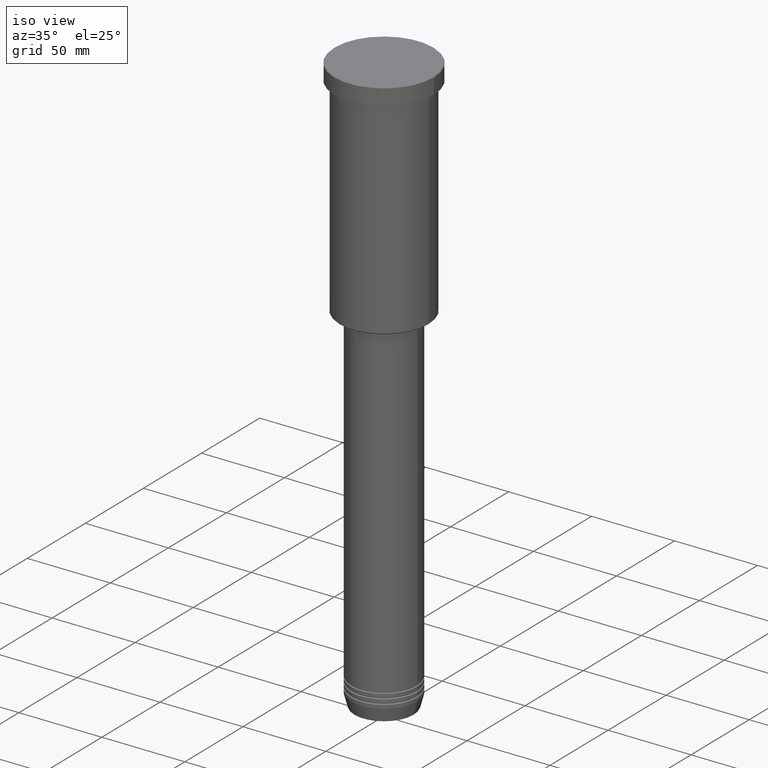
[diagram: clean part render]
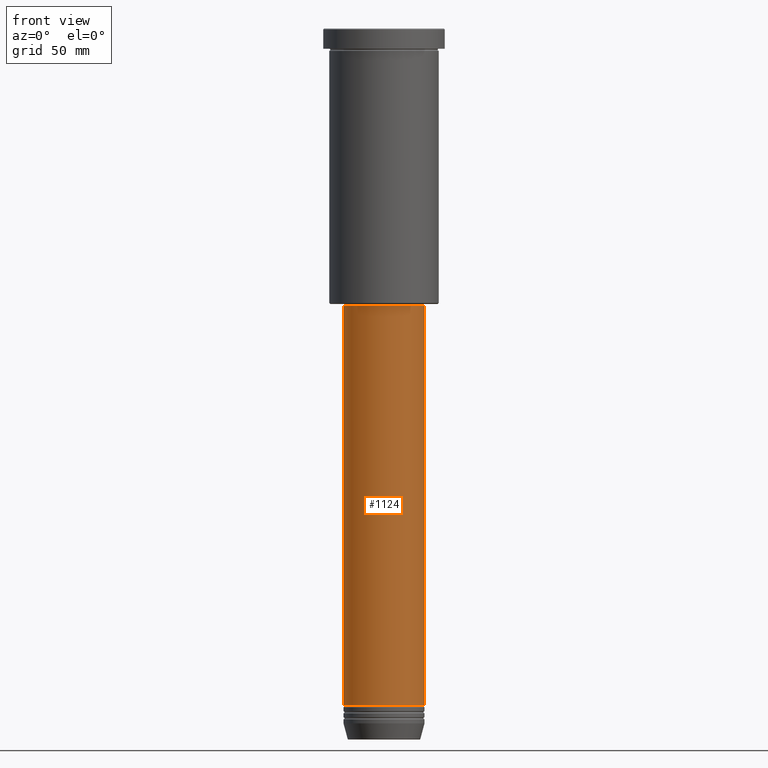
[diagram: tour spotlight — one face highlighted and labeled with its STEP entity id]
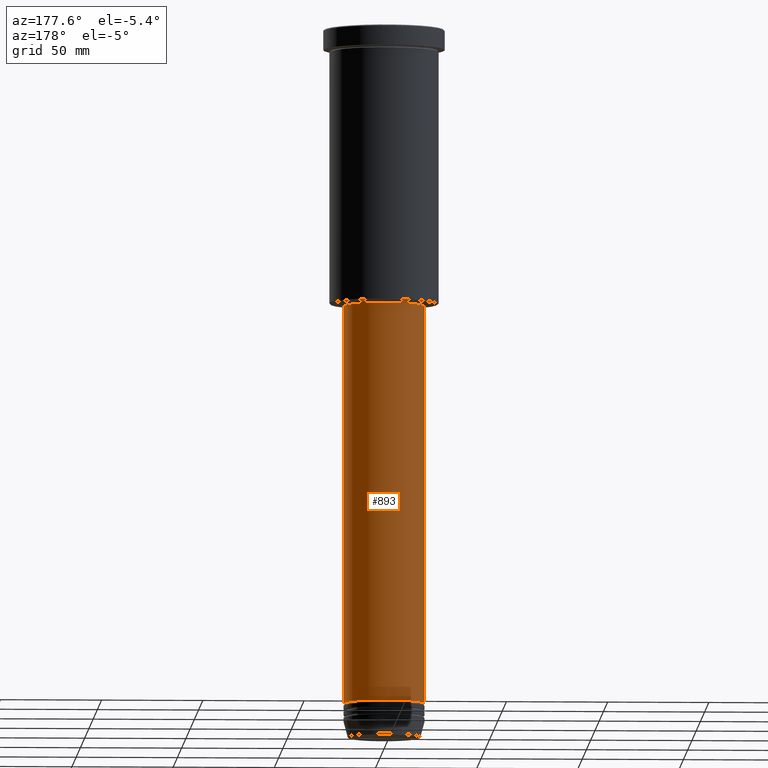
[diagram: tour spotlight — one face highlighted and labeled with its STEP entity id]
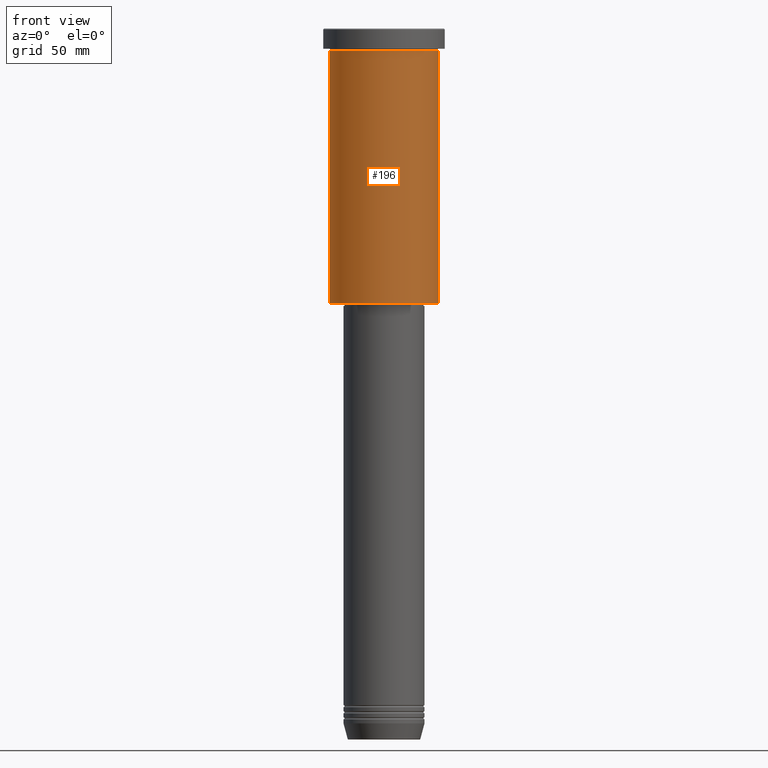
[diagram: tour spotlight — one face highlighted and labeled with its STEP entity id]
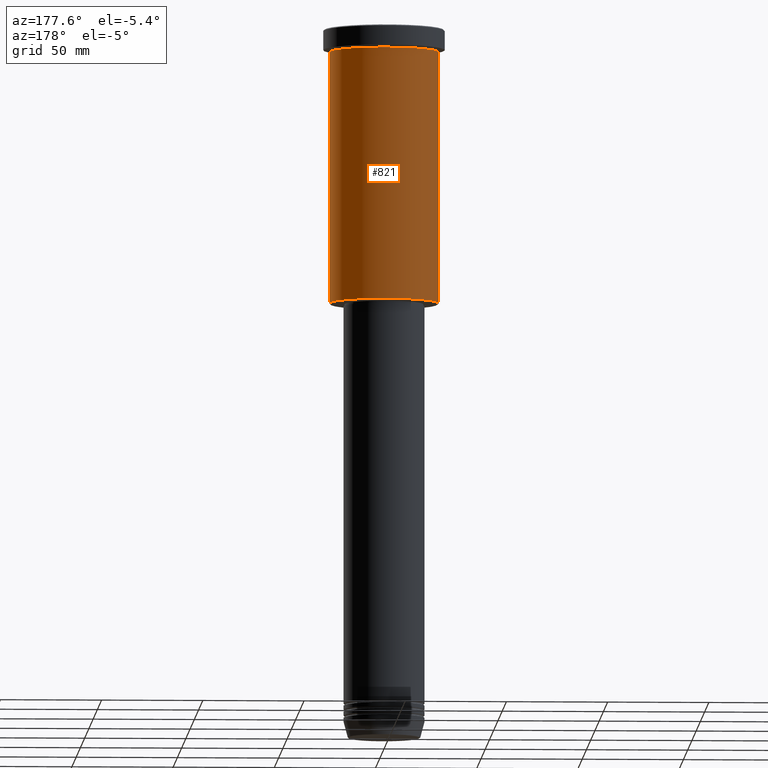
[diagram: tour spotlight — one face highlighted and labeled with its STEP entity id]
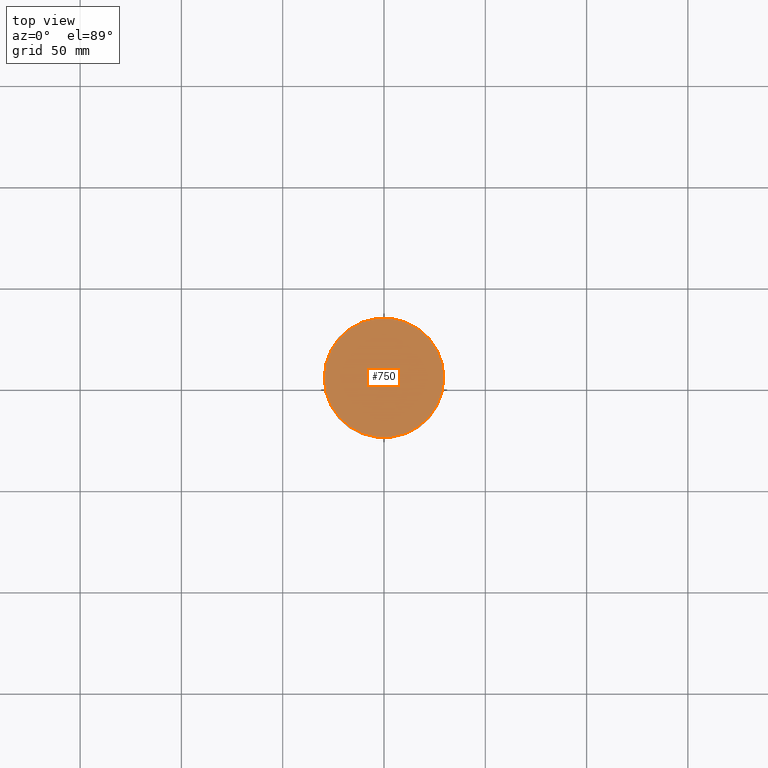
[diagram: tour spotlight — one face highlighted and labeled with its STEP entity id]
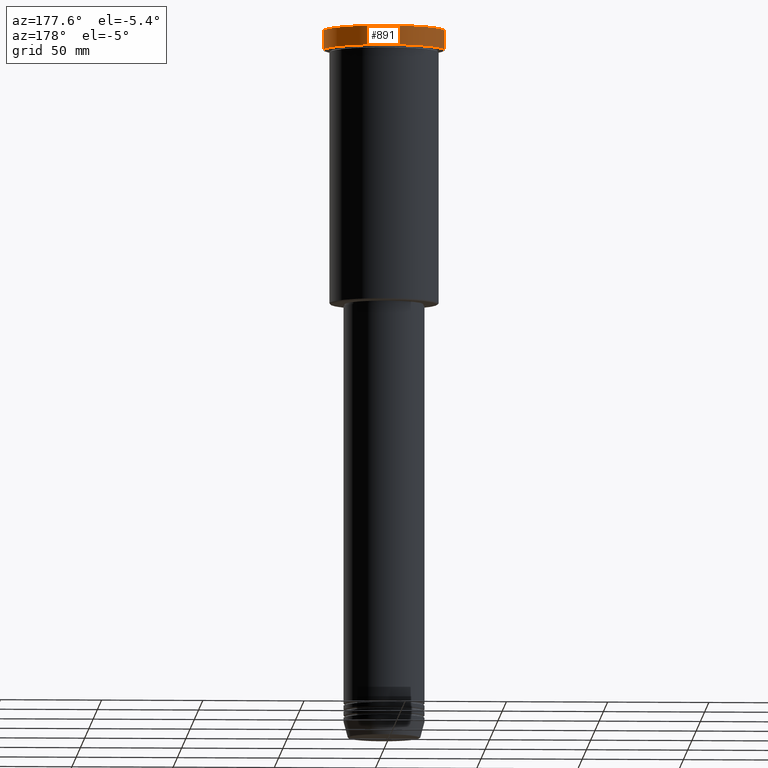
[diagram: tour spotlight — one face highlighted and labeled with its STEP entity id]
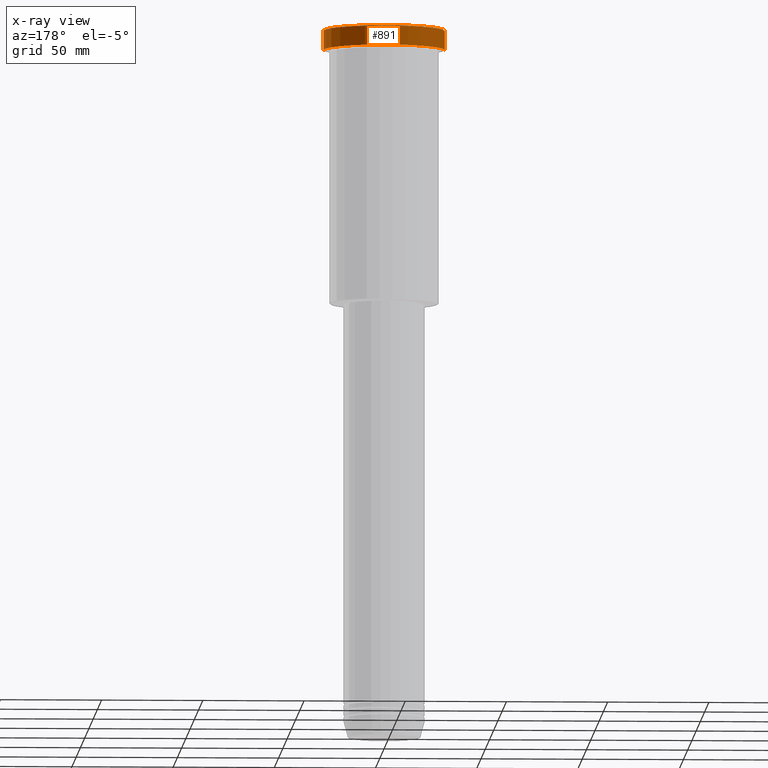
[diagram: x-ray of the same camera — body ghosted, this tour face saturated]
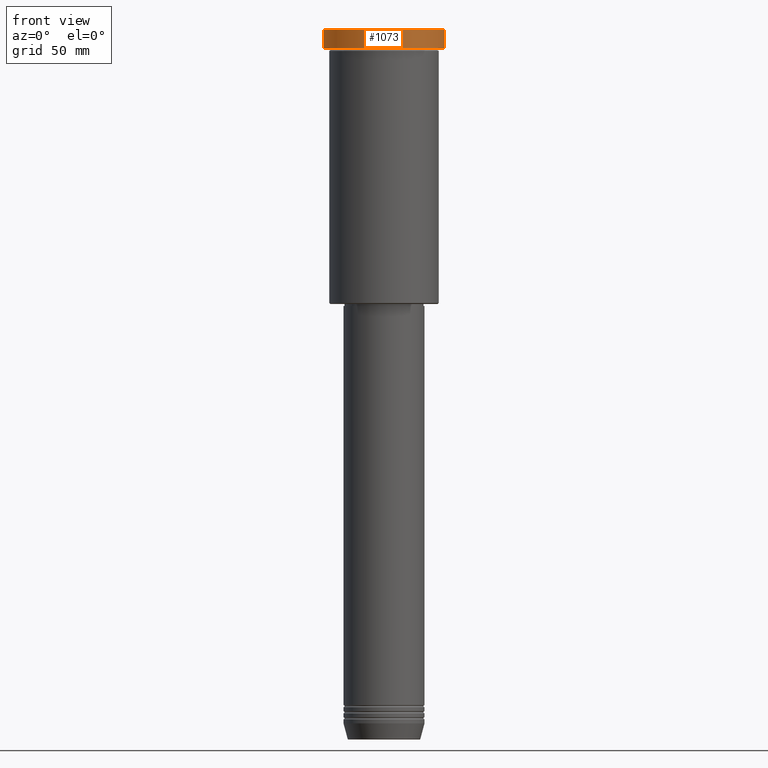
[diagram: tour spotlight — one face highlighted and labeled with its STEP entity id]
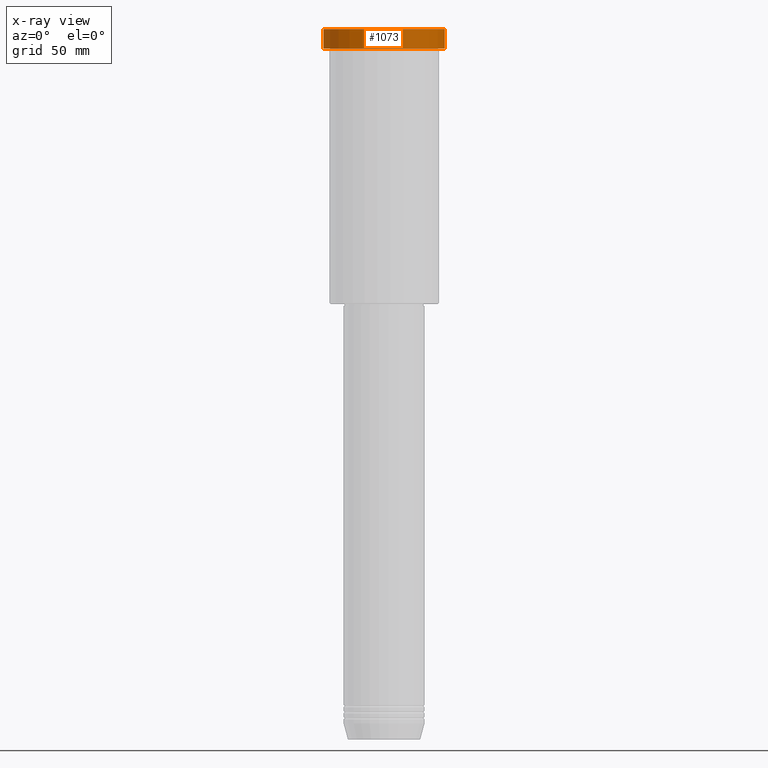
[diagram: x-ray of the same camera — body ghosted, this tour face saturated]
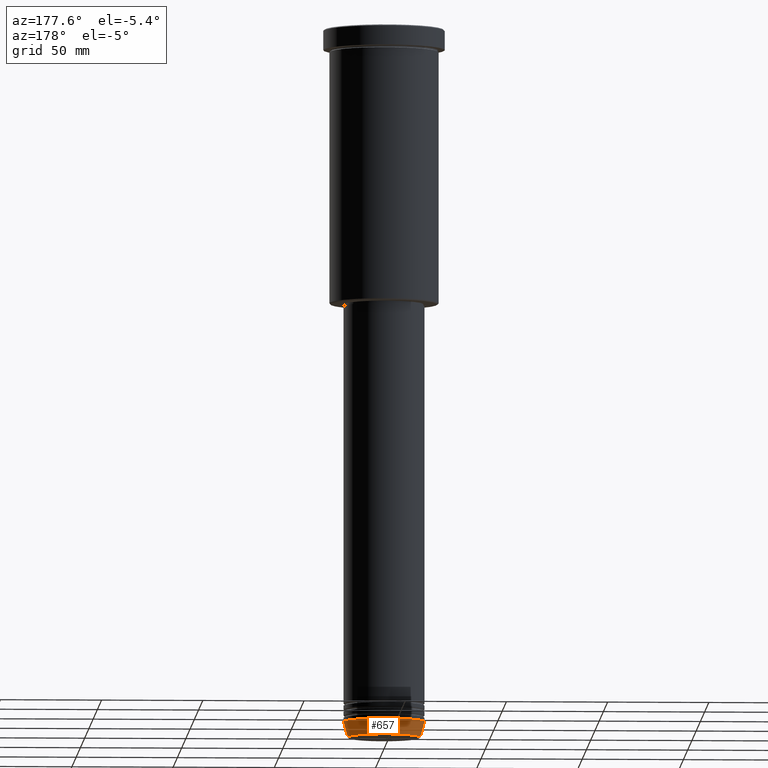
[diagram: tour spotlight — one face highlighted and labeled with its STEP entity id]
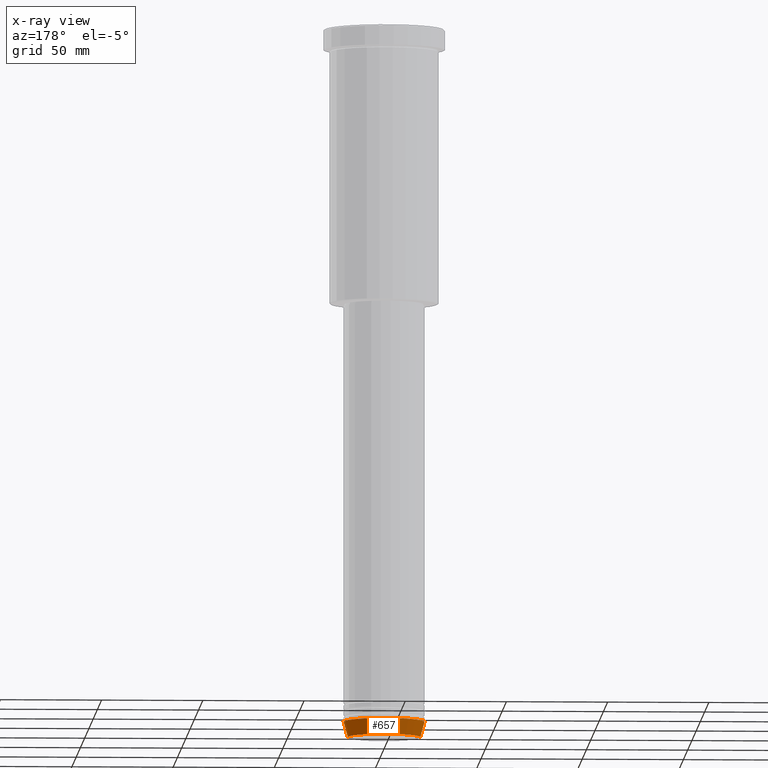
[diagram: x-ray of the same camera — body ghosted, this tour face saturated]
A machine part: a face-by-face anatomy tour. The part has 43 B-rep faces; the first image is the clean iso view, then the 8 largest visible faces are spotlighted one at a time (largest first), each with its STEP entity span.

Face 1 — front view, entity #1124. In plain terms, the highlighted cylindrical surface (partial cylindrical patch) has radius 20 mm, axis along (-0, -0, 1).
Definition (entity closure, byte-faithful):
#180 = ORIENTED_EDGE ( 'NONE', *, *, #408, .T. ) ;
#183 = DIRECTION ( 'NONE',  ( -0.000000000000000000, -0.000000000000000000, 1.000000000000000000 ) ) ;
#227 = CARTESIAN_POINT ( 'NONE',  ( 0.000000000000000000, 0.000000000000000000, 0.000000000000000000 ) ) ;
#302 = CYLINDRICAL_SURFACE ( 'NONE', #1092, 20.00000000000000000 ) ;
#304 = ORIENTED_EDGE ( 'NONE', *, *, #904, .F. ) ;
#307 = DIRECTION ( 'NONE',  ( 1.000000000000000000, 0.000000000000000000, 0.000000000000000000 ) ) ;
#340 = ORIENTED_EDGE ( 'NONE', *, *, #473, .F. ) ;
#351 = DIRECTION ( 'NONE',  ( -0.000000000000000000, -0.000000000000000000, 1.000000000000000000 ) ) ;
#353 = CIRCLE ( 'NONE', #721, 20.00000000000000000 ) ;
#355 = EDGE_LOOP ( 'NONE', ( #304, #827, #180, #340 ) ) ;
#397 = CARTESIAN_POINT ( 'NONE',  ( 0.000000000000000000, 0.000000000000000000, -333.9999999999999432 ) ) ;
#408 = EDGE_CURVE ( 'NONE', #749, #947, #887, .T. ) ;
#409 = VERTEX_POINT ( 'NONE', #517 ) ;
#411 = CIRCLE ( 'NONE', #1069, 20.00000000000000000 ) ;
#418 = CARTESIAN_POINT ( 'NONE',  ( 20.00000000000000000, 0.000000000000000000, -333.9999999999999432 ) ) ;
#433 = DIRECTION ( 'NONE',  ( -0.000000000000000000, -0.000000000000000000, 1.000000000000000000 ) ) ;
#441 = CARTESIAN_POINT ( 'NONE',  ( 0.000000000000000000, 0.000000000000000000, -136.9999999999998579 ) ) ;
#473 = EDGE_CURVE ( 'NONE', #475, #947, #353, .T. ) ;
#475 = VERTEX_POINT ( 'NONE', #712 ) ;
#517 = CARTESIAN_POINT ( 'NONE',  ( -20.00000000000000000, 2.449293598294706513E-15, -333.9999999999999432 ) ) ;
#522 = CARTESIAN_POINT ( 'NONE',  ( 20.00000000000000000, 0.000000000000000000, 0.000000000000000000 ) ) ;
#588 = EDGE_CURVE ( 'NONE', #409, #749, #411, .T. ) ;
#607 = CARTESIAN_POINT ( 'NONE',  ( -20.00000000000000000, 2.449293598294706513E-15, 0.000000000000000000 ) ) ;
#712 = CARTESIAN_POINT ( 'NONE',  ( -20.00000000000000000, 2.449293598294706513E-15, -136.9999999999998579 ) ) ;
#721 = AXIS2_PLACEMENT_3D ( 'NONE', #441, #351, #808 ) ;
#749 = VERTEX_POINT ( 'NONE', #418 ) ;
#788 = CARTESIAN_POINT ( 'NONE',  ( 20.00000000000000000, 0.000000000000000000, -136.9999999999998579 ) ) ;
#790 = DIRECTION ( 'NONE',  ( -0.000000000000000000, -0.000000000000000000, 1.000000000000000000 ) ) ;
#801 = LINE ( 'NONE', #607, #1090 ) ;
#808 = DIRECTION ( 'NONE',  ( 1.000000000000000000, 0.000000000000000000, 0.000000000000000000 ) ) ;
#827 = ORIENTED_EDGE ( 'NONE', *, *, #588, .T. ) ;
#858 = DIRECTION ( 'NONE',  ( -0.000000000000000000, -0.000000000000000000, 1.000000000000000000 ) ) ;
#879 = VECTOR ( 'NONE', #790, 1000.000000000000000 ) ;
#887 = LINE ( 'NONE', #522, #879 ) ;
#904 = EDGE_CURVE ( 'NONE', #409, #475, #801, .T. ) ;
#947 = VERTEX_POINT ( 'NONE', #788 ) ;
#1069 = AXIS2_PLACEMENT_3D ( 'NONE', #397, #183, #1101 ) ;
#1090 = VECTOR ( 'NONE', #433, 1000.000000000000000 ) ;
#1092 = AXIS2_PLACEMENT_3D ( 'NONE', #227, #858, #307 ) ;
#1101 = DIRECTION ( 'NONE',  ( 1.000000000000000000, 0.000000000000000000, 0.000000000000000000 ) ) ;
#1117 = FACE_OUTER_BOUND ( 'NONE', #355, .T. ) ;
#1124 = ADVANCED_FACE ( 'NONE', ( #1117 ), #302, .T. ) ;

Face 2 — auxiliary view, entity #893. In plain terms, the highlighted cylindrical surface (partial cylindrical patch) has radius 20 mm, axis along (-0, -0, 1).
Definition (entity closure, byte-faithful):
#67 = CYLINDRICAL_SURFACE ( 'NONE', #590, 20.00000000000000000 ) ;
#85 = DIRECTION ( 'NONE',  ( 1.000000000000000000, 0.000000000000000000, 0.000000000000000000 ) ) ;
#90 = CARTESIAN_POINT ( 'NONE',  ( 0.000000000000000000, 0.000000000000000000, -333.9999999999999432 ) ) ;
#188 = EDGE_CURVE ( 'NONE', #749, #409, #1049, .T. ) ;
#267 = CARTESIAN_POINT ( 'NONE',  ( 0.000000000000000000, 0.000000000000000000, -136.9999999999998579 ) ) ;
#286 = DIRECTION ( 'NONE',  ( -0.000000000000000000, -0.000000000000000000, 1.000000000000000000 ) ) ;
#359 = CARTESIAN_POINT ( 'NONE',  ( 0.000000000000000000, 0.000000000000000000, 0.000000000000000000 ) ) ;
#387 = DIRECTION ( 'NONE',  ( 1.000000000000000000, 0.000000000000000000, 0.000000000000000000 ) ) ;
#408 = EDGE_CURVE ( 'NONE', #749, #947, #887, .T. ) ;
#409 = VERTEX_POINT ( 'NONE', #517 ) ;
#418 = CARTESIAN_POINT ( 'NONE',  ( 20.00000000000000000, 0.000000000000000000, -333.9999999999999432 ) ) ;
#433 = DIRECTION ( 'NONE',  ( -0.000000000000000000, -0.000000000000000000, 1.000000000000000000 ) ) ;
#444 = DIRECTION ( 'NONE',  ( -0.000000000000000000, -0.000000000000000000, 1.000000000000000000 ) ) ;
#475 = VERTEX_POINT ( 'NONE', #712 ) ;
#517 = CARTESIAN_POINT ( 'NONE',  ( -20.00000000000000000, 2.449293598294706513E-15, -333.9999999999999432 ) ) ;
#518 = AXIS2_PLACEMENT_3D ( 'NONE', #267, #286, #387 ) ;
#522 = CARTESIAN_POINT ( 'NONE',  ( 20.00000000000000000, 0.000000000000000000, 0.000000000000000000 ) ) ;
#528 = FACE_OUTER_BOUND ( 'NONE', #546, .T. ) ;
#546 = EDGE_LOOP ( 'NONE', ( #820, #1155, #731, #675 ) ) ;
#547 = AXIS2_PLACEMENT_3D ( 'NONE', #90, #651, #1114 ) ;
#590 = AXIS2_PLACEMENT_3D ( 'NONE', #359, #444, #85 ) ;
#607 = CARTESIAN_POINT ( 'NONE',  ( -20.00000000000000000, 2.449293598294706513E-15, 0.000000000000000000 ) ) ;
#651 = DIRECTION ( 'NONE',  ( -0.000000000000000000, -0.000000000000000000, 1.000000000000000000 ) ) ;
#675 = ORIENTED_EDGE ( 'NONE', *, *, #408, .F. ) ;
#712 = CARTESIAN_POINT ( 'NONE',  ( -20.00000000000000000, 2.449293598294706513E-15, -136.9999999999998579 ) ) ;
#731 = ORIENTED_EDGE ( 'NONE', *, *, #1067, .F. ) ;
#749 = VERTEX_POINT ( 'NONE', #418 ) ;
#788 = CARTESIAN_POINT ( 'NONE',  ( 20.00000000000000000, 0.000000000000000000, -136.9999999999998579 ) ) ;
#790 = DIRECTION ( 'NONE',  ( -0.000000000000000000, -0.000000000000000000, 1.000000000000000000 ) ) ;
#801 = LINE ( 'NONE', #607, #1090 ) ;
#820 = ORIENTED_EDGE ( 'NONE', *, *, #188, .T. ) ;
#879 = VECTOR ( 'NONE', #790, 1000.000000000000000 ) ;
#887 = LINE ( 'NONE', #522, #879 ) ;
#893 = ADVANCED_FACE ( 'NONE', ( #528 ), #67, .T. ) ;
#904 = EDGE_CURVE ( 'NONE', #409, #475, #801, .T. ) ;
#947 = VERTEX_POINT ( 'NONE', #788 ) ;
#992 = CIRCLE ( 'NONE', #518, 20.00000000000000000 ) ;
#1049 = CIRCLE ( 'NONE', #547, 20.00000000000000000 ) ;
#1067 = EDGE_CURVE ( 'NONE', #947, #475, #992, .T. ) ;
#1090 = VECTOR ( 'NONE', #433, 1000.000000000000000 ) ;
#1114 = DIRECTION ( 'NONE',  ( 1.000000000000000000, 0.000000000000000000, 0.000000000000000000 ) ) ;
#1155 = ORIENTED_EDGE ( 'NONE', *, *, #904, .T. ) ;

Face 3 — front view, entity #196. In plain terms, the highlighted cylindrical surface (partial cylindrical patch) has radius 27 mm, axis along (-0, -0, 1).
Definition (entity closure, byte-faithful):
#1 = CARTESIAN_POINT ( 'NONE',  ( -27.00000000000000355, 3.306546357697854128E-15, -135.5000000000000000 ) ) ;
#5 = EDGE_CURVE ( 'NONE', #937, #1125, #290, .T. ) ;
#125 = ORIENTED_EDGE ( 'NONE', *, *, #5, .T. ) ;
#196 = ADVANCED_FACE ( 'NONE', ( #833 ), #922, .T. ) ;
#276 = CARTESIAN_POINT ( 'NONE',  ( 27.00000000000000355, 0.000000000000000000, 0.000000000000000000 ) ) ;
#285 = DIRECTION ( 'NONE',  ( -0.000000000000000000, -0.000000000000000000, 1.000000000000000000 ) ) ;
#290 = CIRCLE ( 'NONE', #946, 27.00000000000000355 ) ;
#372 = ORIENTED_EDGE ( 'NONE', *, *, #950, .F. ) ;
#385 = CARTESIAN_POINT ( 'NONE',  ( -27.00000000000000355, 3.306546357697854128E-15, -10.99999999999999289 ) ) ;
#413 = VECTOR ( 'NONE', #780, 1000.000000000000000 ) ;
#420 = ORIENTED_EDGE ( 'NONE', *, *, #1002, .F. ) ;
#426 = LINE ( 'NONE', #704, #413 ) ;
#450 = CIRCLE ( 'NONE', #844, 27.00000000000000355 ) ;
#541 = DIRECTION ( 'NONE',  ( -0.000000000000000000, -0.000000000000000000, 1.000000000000000000 ) ) ;
#563 = VERTEX_POINT ( 'NONE', #385 ) ;
#599 = CARTESIAN_POINT ( 'NONE',  ( 0.000000000000000000, 0.000000000000000000, -135.5000000000000000 ) ) ;
#626 = DIRECTION ( 'NONE',  ( -0.000000000000000000, -0.000000000000000000, 1.000000000000000000 ) ) ;
#638 = CARTESIAN_POINT ( 'NONE',  ( 0.000000000000000000, 0.000000000000000000, -10.99999999999999289 ) ) ;
#677 = DIRECTION ( 'NONE',  ( -0.000000000000000000, -0.000000000000000000, 1.000000000000000000 ) ) ;
#694 = CARTESIAN_POINT ( 'NONE',  ( 27.00000000000000355, 0.000000000000000000, -10.99999999999999289 ) ) ;
#704 = CARTESIAN_POINT ( 'NONE',  ( -27.00000000000000355, 3.306546357697854128E-15, 0.000000000000000000 ) ) ;
#766 = CARTESIAN_POINT ( 'NONE',  ( 27.00000000000000355, 0.000000000000000000, -135.5000000000000000 ) ) ;
#767 = DIRECTION ( 'NONE',  ( -1.000000000000000000, 0.000000000000000000, 0.000000000000000000 ) ) ;
#775 = AXIS2_PLACEMENT_3D ( 'NONE', #1016, #285, #1008 ) ;
#780 = DIRECTION ( 'NONE',  ( -0.000000000000000000, -0.000000000000000000, 1.000000000000000000 ) ) ;
#833 = FACE_OUTER_BOUND ( 'NONE', #1148, .T. ) ;
#844 = AXIS2_PLACEMENT_3D ( 'NONE', #638, #626, #990 ) ;
#902 = VERTEX_POINT ( 'NONE', #694 ) ;
#922 = CYLINDRICAL_SURFACE ( 'NONE', #775, 27.00000000000000355 ) ;
#937 = VERTEX_POINT ( 'NONE', #1 ) ;
#946 = AXIS2_PLACEMENT_3D ( 'NONE', #599, #677, #767 ) ;
#950 = EDGE_CURVE ( 'NONE', #937, #563, #426, .T. ) ;
#990 = DIRECTION ( 'NONE',  ( 1.000000000000000000, 0.000000000000000000, 0.000000000000000000 ) ) ;
#1002 = EDGE_CURVE ( 'NONE', #563, #902, #450, .T. ) ;
#1008 = DIRECTION ( 'NONE',  ( 1.000000000000000000, 0.000000000000000000, 0.000000000000000000 ) ) ;
#1016 = CARTESIAN_POINT ( 'NONE',  ( 0.000000000000000000, 0.000000000000000000, 0.000000000000000000 ) ) ;
#1027 = ORIENTED_EDGE ( 'NONE', *, *, #1084, .T. ) ;
#1053 = VECTOR ( 'NONE', #541, 1000.000000000000000 ) ;
#1084 = EDGE_CURVE ( 'NONE', #1125, #902, #1089, .T. ) ;
#1089 = LINE ( 'NONE', #276, #1053 ) ;
#1125 = VERTEX_POINT ( 'NONE', #766 ) ;
#1148 = EDGE_LOOP ( 'NONE', ( #372, #125, #1027, #420 ) ) ;

Face 4 — auxiliary view, entity #821. In plain terms, the highlighted cylindrical surface (partial cylindrical patch) has radius 27 mm, axis along (-0, -0, 1).
Definition (entity closure, byte-faithful):
#1 = CARTESIAN_POINT ( 'NONE',  ( -27.00000000000000355, 3.306546357697854128E-15, -135.5000000000000000 ) ) ;
#17 = CARTESIAN_POINT ( 'NONE',  ( 0.000000000000000000, 0.000000000000000000, -135.5000000000000000 ) ) ;
#21 = DIRECTION ( 'NONE',  ( -0.000000000000000000, -0.000000000000000000, 1.000000000000000000 ) ) ;
#50 = CARTESIAN_POINT ( 'NONE',  ( 0.000000000000000000, 0.000000000000000000, 0.000000000000000000 ) ) ;
#95 = DIRECTION ( 'NONE',  ( -0.000000000000000000, -0.000000000000000000, 1.000000000000000000 ) ) ;
#102 = CARTESIAN_POINT ( 'NONE',  ( 0.000000000000000000, 0.000000000000000000, -10.99999999999999289 ) ) ;
#198 = ORIENTED_EDGE ( 'NONE', *, *, #1036, .T. ) ;
#276 = CARTESIAN_POINT ( 'NONE',  ( 27.00000000000000355, 0.000000000000000000, 0.000000000000000000 ) ) ;
#296 = DIRECTION ( 'NONE',  ( -1.000000000000000000, 0.000000000000000000, 0.000000000000000000 ) ) ;
#313 = DIRECTION ( 'NONE',  ( 1.000000000000000000, 0.000000000000000000, 0.000000000000000000 ) ) ;
#385 = CARTESIAN_POINT ( 'NONE',  ( -27.00000000000000355, 3.306546357697854128E-15, -10.99999999999999289 ) ) ;
#413 = VECTOR ( 'NONE', #780, 1000.000000000000000 ) ;
#426 = LINE ( 'NONE', #704, #413 ) ;
#487 = EDGE_LOOP ( 'NONE', ( #198, #1005, #662, #1144 ) ) ;
#501 = AXIS2_PLACEMENT_3D ( 'NONE', #17, #21, #296 ) ;
#539 = EDGE_CURVE ( 'NONE', #902, #563, #856, .T. ) ;
#541 = DIRECTION ( 'NONE',  ( -0.000000000000000000, -0.000000000000000000, 1.000000000000000000 ) ) ;
#563 = VERTEX_POINT ( 'NONE', #385 ) ;
#609 = AXIS2_PLACEMENT_3D ( 'NONE', #50, #768, #313 ) ;
#662 = ORIENTED_EDGE ( 'NONE', *, *, #539, .F. ) ;
#689 = FACE_OUTER_BOUND ( 'NONE', #487, .T. ) ;
#694 = CARTESIAN_POINT ( 'NONE',  ( 27.00000000000000355, 0.000000000000000000, -10.99999999999999289 ) ) ;
#704 = CARTESIAN_POINT ( 'NONE',  ( -27.00000000000000355, 3.306546357697854128E-15, 0.000000000000000000 ) ) ;
#766 = CARTESIAN_POINT ( 'NONE',  ( 27.00000000000000355, 0.000000000000000000, -135.5000000000000000 ) ) ;
#768 = DIRECTION ( 'NONE',  ( -0.000000000000000000, -0.000000000000000000, 1.000000000000000000 ) ) ;
#780 = DIRECTION ( 'NONE',  ( -0.000000000000000000, -0.000000000000000000, 1.000000000000000000 ) ) ;
#821 = ADVANCED_FACE ( 'NONE', ( #689 ), #861, .T. ) ;
#856 = CIRCLE ( 'NONE', #1012, 27.00000000000000355 ) ;
#861 = CYLINDRICAL_SURFACE ( 'NONE', #609, 27.00000000000000355 ) ;
#882 = CIRCLE ( 'NONE', #501, 27.00000000000000355 ) ;
#902 = VERTEX_POINT ( 'NONE', #694 ) ;
#912 = DIRECTION ( 'NONE',  ( 1.000000000000000000, 0.000000000000000000, 0.000000000000000000 ) ) ;
#937 = VERTEX_POINT ( 'NONE', #1 ) ;
#950 = EDGE_CURVE ( 'NONE', #937, #563, #426, .T. ) ;
#1005 = ORIENTED_EDGE ( 'NONE', *, *, #950, .T. ) ;
#1012 = AXIS2_PLACEMENT_3D ( 'NONE', #102, #95, #912 ) ;
#1036 = EDGE_CURVE ( 'NONE', #1125, #937, #882, .T. ) ;
#1053 = VECTOR ( 'NONE', #541, 1000.000000000000000 ) ;
#1084 = EDGE_CURVE ( 'NONE', #1125, #902, #1089, .T. ) ;
#1089 = LINE ( 'NONE', #276, #1053 ) ;
#1125 = VERTEX_POINT ( 'NONE', #766 ) ;
#1144 = ORIENTED_EDGE ( 'NONE', *, *, #1084, .F. ) ;

Face 5 — top view, entity #750. In plain terms, the highlighted planar face has unit normal (0, -0, 1).
Definition (entity closure, byte-faithful):
#27 = CARTESIAN_POINT ( 'NONE',  ( 0.000000000000000000, 0.000000000000000000, 0.000000000000000000 ) ) ;
#40 = DIRECTION ( 'NONE',  ( 0.000000000000000000, -0.000000000000000000, 1.000000000000000000 ) ) ;
#45 = AXIS2_PLACEMENT_3D ( 'NONE', #423, #40, #678 ) ;
#110 = ORIENTED_EDGE ( 'NONE', *, *, #866, .T. ) ;
#160 = DIRECTION ( 'NONE',  ( -0.000000000000000000, -0.000000000000000000, 1.000000000000000000 ) ) ;
#171 = AXIS2_PLACEMENT_3D ( 'NONE', #27, #537, #718 ) ;
#416 = EDGE_LOOP ( 'NONE', ( #494, #110 ) ) ;
#423 = CARTESIAN_POINT ( 'NONE',  ( 0.000000000000000000, 0.000000000000000000, 0.000000000000000000 ) ) ;
#494 = ORIENTED_EDGE ( 'NONE', *, *, #1082, .T. ) ;
#537 = DIRECTION ( 'NONE',  ( -0.000000000000000000, -0.000000000000000000, 1.000000000000000000 ) ) ;
#552 = CARTESIAN_POINT ( 'NONE',  ( 29.50000000000002487, 3.643324227463376968E-15, 0.000000000000000000 ) ) ;
#554 = VERTEX_POINT ( 'NONE', #1021 ) ;
#670 = AXIS2_PLACEMENT_3D ( 'NONE', #1162, #160, #874 ) ;
#673 = CIRCLE ( 'NONE', #171, 29.50000000000002487 ) ;
#678 = DIRECTION ( 'NONE',  ( 1.000000000000000000, 0.000000000000000000, 0.000000000000000000 ) ) ;
#718 = DIRECTION ( 'NONE',  ( 1.000000000000000000, 0.000000000000000000, 0.000000000000000000 ) ) ;
#750 = ADVANCED_FACE ( 'NONE', ( #868 ), #945, .T. ) ;
#842 = CIRCLE ( 'NONE', #670, 29.50000000000002487 ) ;
#866 = EDGE_CURVE ( 'NONE', #1078, #554, #842, .T. ) ;
#868 = FACE_OUTER_BOUND ( 'NONE', #416, .T. ) ;
#874 = DIRECTION ( 'NONE',  ( 1.000000000000000000, 0.000000000000000000, 0.000000000000000000 ) ) ;
#945 = PLANE ( 'NONE',  #45 ) ;
#1021 = CARTESIAN_POINT ( 'NONE',  ( -29.50000000000002487, 0.000000000000000000, 0.000000000000000000 ) ) ;
#1078 = VERTEX_POINT ( 'NONE', #552 ) ;
#1082 = EDGE_CURVE ( 'NONE', #554, #1078, #673, .T. ) ;
#1162 = CARTESIAN_POINT ( 'NONE',  ( 0.000000000000000000, 0.000000000000000000, 0.000000000000000000 ) ) ;

Face 6 — auxiliary view, entity #891. An x-ray twin of the same camera follows (body ghosted, this face saturated) — the face is partly hidden behind the body. In plain terms, the highlighted cylindrical surface (partial cylindrical patch) has radius 30 mm, axis along (-0, -0, 1).
Definition (entity closure, byte-faithful):
#41 = VERTEX_POINT ( 'NONE', #323 ) ;
#73 = FACE_OUTER_BOUND ( 'NONE', #743, .T. ) ;
#75 = LINE ( 'NONE', #1079, #167 ) ;
#127 = ORIENTED_EDGE ( 'NONE', *, *, #181, .F. ) ;
#167 = VECTOR ( 'NONE', #260, 1000.000000000000000 ) ;
#181 = EDGE_CURVE ( 'NONE', #872, #41, #75, .T. ) ;
#234 = VERTEX_POINT ( 'NONE', #557 ) ;
#254 = VECTOR ( 'NONE', #467, 1000.000000000000000 ) ;
#257 = VERTEX_POINT ( 'NONE', #1150 ) ;
#260 = DIRECTION ( 'NONE',  ( -0.000000000000000000, -0.000000000000000000, 1.000000000000000000 ) ) ;
#316 = EDGE_CURVE ( 'NONE', #872, #234, #648, .T. ) ;
#323 = CARTESIAN_POINT ( 'NONE',  ( 30.00000000000000000, 0.000000000000000000, -0.5000000000000073275 ) ) ;
#362 = DIRECTION ( 'NONE',  ( -0.000000000000000000, -0.000000000000000000, 1.000000000000000000 ) ) ;
#377 = CIRCLE ( 'NONE', #880, 30.00000000000000000 ) ;
#383 = DIRECTION ( 'NONE',  ( 1.000000000000000000, 0.000000000000000000, 0.000000000000000000 ) ) ;
#467 = DIRECTION ( 'NONE',  ( -0.000000000000000000, -0.000000000000000000, 1.000000000000000000 ) ) ;
#557 = CARTESIAN_POINT ( 'NONE',  ( -30.00000000000000000, 3.673940397442059178E-15, -9.999999999999992895 ) ) ;
#565 = DIRECTION ( 'NONE',  ( 0.000000000000000000, 0.000000000000000000, -1.000000000000000000 ) ) ;
#568 = CARTESIAN_POINT ( 'NONE',  ( 0.000000000000000000, 0.000000000000000000, -9.999999999999992895 ) ) ;
#589 = CARTESIAN_POINT ( 'NONE',  ( 0.000000000000000000, 0.000000000000000000, -0.5000000000000073275 ) ) ;
#622 = CARTESIAN_POINT ( 'NONE',  ( 30.00000000000000000, 0.000000000000000000, -9.999999999999992895 ) ) ;
#632 = ORIENTED_EDGE ( 'NONE', *, *, #316, .T. ) ;
#648 = CIRCLE ( 'NONE', #855, 30.00000000000000000 ) ;
#711 = CYLINDRICAL_SURFACE ( 'NONE', #1154, 30.00000000000000000 ) ;
#725 = CARTESIAN_POINT ( 'NONE',  ( -30.00000000000000000, 3.673940397442059178E-15, 0.000000000000000000 ) ) ;
#743 = EDGE_LOOP ( 'NONE', ( #632, #813, #940, #127 ) ) ;
#746 = EDGE_CURVE ( 'NONE', #257, #41, #377, .T. ) ;
#807 = DIRECTION ( 'NONE',  ( 1.000000000000000000, 0.000000000000000000, 0.000000000000000000 ) ) ;
#813 = ORIENTED_EDGE ( 'NONE', *, *, #1019, .T. ) ;
#855 = AXIS2_PLACEMENT_3D ( 'NONE', #568, #1123, #383 ) ;
#872 = VERTEX_POINT ( 'NONE', #622 ) ;
#880 = AXIS2_PLACEMENT_3D ( 'NONE', #589, #565, #1138 ) ;
#891 = ADVANCED_FACE ( 'NONE', ( #73 ), #711, .T. ) ;
#900 = LINE ( 'NONE', #725, #254 ) ;
#940 = ORIENTED_EDGE ( 'NONE', *, *, #746, .T. ) ;
#1019 = EDGE_CURVE ( 'NONE', #234, #257, #900, .T. ) ;
#1056 = CARTESIAN_POINT ( 'NONE',  ( 0.000000000000000000, 0.000000000000000000, 0.000000000000000000 ) ) ;
#1079 = CARTESIAN_POINT ( 'NONE',  ( 30.00000000000000000, 0.000000000000000000, 0.000000000000000000 ) ) ;
#1123 = DIRECTION ( 'NONE',  ( -0.000000000000000000, -0.000000000000000000, 1.000000000000000000 ) ) ;
#1138 = DIRECTION ( 'NONE',  ( 1.000000000000000000, 0.000000000000000000, 0.000000000000000000 ) ) ;
#1150 = CARTESIAN_POINT ( 'NONE',  ( -30.00000000000000000, 3.673940397442059178E-15, -0.5000000000000073275 ) ) ;
#1154 = AXIS2_PLACEMENT_3D ( 'NONE', #1056, #362, #807 ) ;

Face 7 — front view, entity #1073. An x-ray twin of the same camera follows (body ghosted, this face saturated) — the face is partly hidden behind the body. In plain terms, the highlighted cylindrical surface (partial cylindrical patch) has radius 30 mm, axis along (-0, -0, 1).
Definition (entity closure, byte-faithful):
#39 = EDGE_CURVE ( 'NONE', #234, #872, #719, .T. ) ;
#41 = VERTEX_POINT ( 'NONE', #323 ) ;
#75 = LINE ( 'NONE', #1079, #167 ) ;
#93 = ORIENTED_EDGE ( 'NONE', *, *, #181, .T. ) ;
#96 = ORIENTED_EDGE ( 'NONE', *, *, #165, .T. ) ;
#165 = EDGE_CURVE ( 'NONE', #41, #257, #1030, .T. ) ;
#167 = VECTOR ( 'NONE', #260, 1000.000000000000000 ) ;
#181 = EDGE_CURVE ( 'NONE', #872, #41, #75, .T. ) ;
#193 = AXIS2_PLACEMENT_3D ( 'NONE', #1020, #924, #836 ) ;
#234 = VERTEX_POINT ( 'NONE', #557 ) ;
#236 = DIRECTION ( 'NONE',  ( 1.000000000000000000, 0.000000000000000000, 0.000000000000000000 ) ) ;
#242 = ORIENTED_EDGE ( 'NONE', *, *, #1019, .F. ) ;
#254 = VECTOR ( 'NONE', #467, 1000.000000000000000 ) ;
#257 = VERTEX_POINT ( 'NONE', #1150 ) ;
#260 = DIRECTION ( 'NONE',  ( -0.000000000000000000, -0.000000000000000000, 1.000000000000000000 ) ) ;
#323 = CARTESIAN_POINT ( 'NONE',  ( 30.00000000000000000, 0.000000000000000000, -0.5000000000000073275 ) ) ;
#337 = DIRECTION ( 'NONE',  ( -0.000000000000000000, -0.000000000000000000, 1.000000000000000000 ) ) ;
#390 = AXIS2_PLACEMENT_3D ( 'NONE', #1140, #337, #236 ) ;
#467 = DIRECTION ( 'NONE',  ( -0.000000000000000000, -0.000000000000000000, 1.000000000000000000 ) ) ;
#509 = EDGE_LOOP ( 'NONE', ( #242, #602, #93, #96 ) ) ;
#557 = CARTESIAN_POINT ( 'NONE',  ( -30.00000000000000000, 3.673940397442059178E-15, -9.999999999999992895 ) ) ;
#602 = ORIENTED_EDGE ( 'NONE', *, *, #39, .T. ) ;
#622 = CARTESIAN_POINT ( 'NONE',  ( 30.00000000000000000, 0.000000000000000000, -9.999999999999992895 ) ) ;
#633 = CARTESIAN_POINT ( 'NONE',  ( 0.000000000000000000, 0.000000000000000000, -0.5000000000000073275 ) ) ;
#654 = CYLINDRICAL_SURFACE ( 'NONE', #193, 30.00000000000000000 ) ;
#719 = CIRCLE ( 'NONE', #390, 30.00000000000000000 ) ;
#725 = CARTESIAN_POINT ( 'NONE',  ( -30.00000000000000000, 3.673940397442059178E-15, 0.000000000000000000 ) ) ;
#791 = DIRECTION ( 'NONE',  ( 1.000000000000000000, 0.000000000000000000, 0.000000000000000000 ) ) ;
#816 = FACE_OUTER_BOUND ( 'NONE', #509, .T. ) ;
#836 = DIRECTION ( 'NONE',  ( 1.000000000000000000, 0.000000000000000000, 0.000000000000000000 ) ) ;
#872 = VERTEX_POINT ( 'NONE', #622 ) ;
#894 = AXIS2_PLACEMENT_3D ( 'NONE', #633, #997, #791 ) ;
#900 = LINE ( 'NONE', #725, #254 ) ;
#924 = DIRECTION ( 'NONE',  ( -0.000000000000000000, -0.000000000000000000, 1.000000000000000000 ) ) ;
#997 = DIRECTION ( 'NONE',  ( 0.000000000000000000, 0.000000000000000000, -1.000000000000000000 ) ) ;
#1019 = EDGE_CURVE ( 'NONE', #234, #257, #900, .T. ) ;
#1020 = CARTESIAN_POINT ( 'NONE',  ( 0.000000000000000000, 0.000000000000000000, 0.000000000000000000 ) ) ;
#1030 = CIRCLE ( 'NONE', #894, 30.00000000000000000 ) ;
#1073 = ADVANCED_FACE ( 'NONE', ( #816 ), #654, .T. ) ;
#1079 = CARTESIAN_POINT ( 'NONE',  ( 30.00000000000000000, 0.000000000000000000, 0.000000000000000000 ) ) ;
#1140 = CARTESIAN_POINT ( 'NONE',  ( 0.000000000000000000, 0.000000000000000000, -9.999999999999992895 ) ) ;
#1150 = CARTESIAN_POINT ( 'NONE',  ( -30.00000000000000000, 3.673940397442059178E-15, -0.5000000000000073275 ) ) ;

Face 8 — auxiliary view, entity #657. An x-ray twin of the same camera follows (body ghosted, this face saturated) — the face is partly hidden behind the body. In plain terms, the highlighted conical surface has half-angle 15 deg.
Definition (entity closure, byte-faithful):
#2 = LINE ( 'NONE', #530, #705 ) ;
#14 = CARTESIAN_POINT ( 'NONE',  ( 20.00000000000000000, 0.000000000000000000, -343.0000000000000000 ) ) ;
#30 = DIRECTION ( 'NONE',  ( 1.000000000000000000, 0.000000000000000000, 0.000000000000000000 ) ) ;
#107 = CARTESIAN_POINT ( 'NONE',  ( -17.95570587970607690, 2.324116685748021371E-15, -350.6294095225512137 ) ) ;
#117 = AXIS2_PLACEMENT_3D ( 'NONE', #726, #838, #30 ) ;
#133 = VECTOR ( 'NONE', #553, 1000.000000000000114 ) ;
#139 = VERTEX_POINT ( 'NONE', #210 ) ;
#194 = LINE ( 'NONE', #14, #133 ) ;
#201 = CARTESIAN_POINT ( 'NONE',  ( 0.000000000000000000, 0.000000000000000000, -350.6294095225512137 ) ) ;
#205 = CARTESIAN_POINT ( 'NONE',  ( -20.00000000000000000, 2.449293598294706513E-15, -343.0000000000000000 ) ) ;
#210 = CARTESIAN_POINT ( 'NONE',  ( 17.95570587970607690, 0.000000000000000000, -350.6294095225512137 ) ) ;
#342 = ORIENTED_EDGE ( 'NONE', *, *, #613, .F. ) ;
#363 = DIRECTION ( 'NONE',  ( -0.2588190451025212391, 3.169619151431771721E-17, 0.9659258262890680902 ) ) ;
#449 = AXIS2_PLACEMENT_3D ( 'NONE', #751, #1122, #666 ) ;
#480 = CONICAL_SURFACE ( 'NONE', #117, 20.00000000000000000, 0.2617993877991499629 ) ;
#498 = CIRCLE ( 'NONE', #1175, 17.95570587970607690 ) ;
#506 = EDGE_CURVE ( 'NONE', #584, #1158, #2, .T. ) ;
#510 = CARTESIAN_POINT ( 'NONE',  ( 20.00000000000000000, 0.000000000000000000, -343.0000000000000000 ) ) ;
#530 = CARTESIAN_POINT ( 'NONE',  ( -20.00000000000000000, 2.449293598294706513E-15, -343.0000000000000000 ) ) ;
#553 = DIRECTION ( 'NONE',  ( 0.2588190451025212391, 0.000000000000000000, 0.9659258262890680902 ) ) ;
#562 = ORIENTED_EDGE ( 'NONE', *, *, #832, .F. ) ;
#584 = VERTEX_POINT ( 'NONE', #107 ) ;
#606 = EDGE_CURVE ( 'NONE', #139, #584, #498, .T. ) ;
#613 = EDGE_CURVE ( 'NONE', #139, #899, #194, .T. ) ;
#641 = ORIENTED_EDGE ( 'NONE', *, *, #606, .T. ) ;
#646 = DIRECTION ( 'NONE',  ( -0.000000000000000000, -0.000000000000000000, 1.000000000000000000 ) ) ;
#657 = ADVANCED_FACE ( 'NONE', ( #1025 ), #480, .T. ) ;
#666 = DIRECTION ( 'NONE',  ( 1.000000000000000000, 0.000000000000000000, 0.000000000000000000 ) ) ;
#705 = VECTOR ( 'NONE', #363, 1000.000000000000114 ) ;
#726 = CARTESIAN_POINT ( 'NONE',  ( 0.000000000000000000, 0.000000000000000000, -343.0000000000000000 ) ) ;
#751 = CARTESIAN_POINT ( 'NONE',  ( 0.000000000000000000, 0.000000000000000000, -343.0000000000000000 ) ) ;
#770 = EDGE_LOOP ( 'NONE', ( #641, #871, #562, #342 ) ) ;
#817 = DIRECTION ( 'NONE',  ( 1.000000000000000000, 0.000000000000000000, 0.000000000000000000 ) ) ;
#832 = EDGE_CURVE ( 'NONE', #899, #1158, #974, .T. ) ;
#838 = DIRECTION ( 'NONE',  ( -0.000000000000000000, -0.000000000000000000, 1.000000000000000000 ) ) ;
#871 = ORIENTED_EDGE ( 'NONE', *, *, #506, .T. ) ;
#899 = VERTEX_POINT ( 'NONE', #510 ) ;
#974 = CIRCLE ( 'NONE', #449, 20.00000000000000000 ) ;
#1025 = FACE_OUTER_BOUND ( 'NONE', #770, .T. ) ;
#1122 = DIRECTION ( 'NONE',  ( -0.000000000000000000, -0.000000000000000000, 1.000000000000000000 ) ) ;
#1158 = VERTEX_POINT ( 'NONE', #205 ) ;
#1175 = AXIS2_PLACEMENT_3D ( 'NONE', #201, #646, #817 ) ;